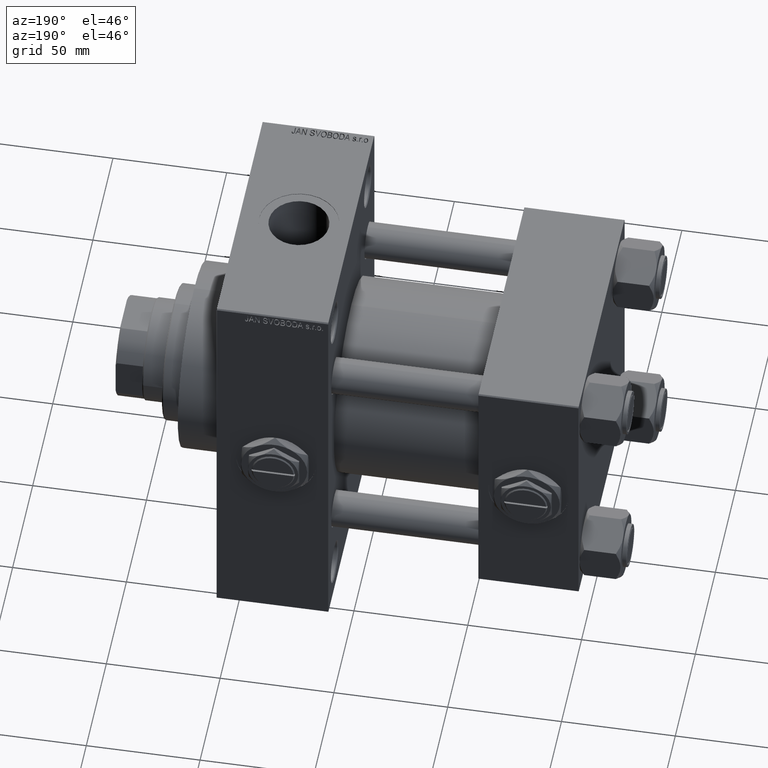
[diagram: clean part render]
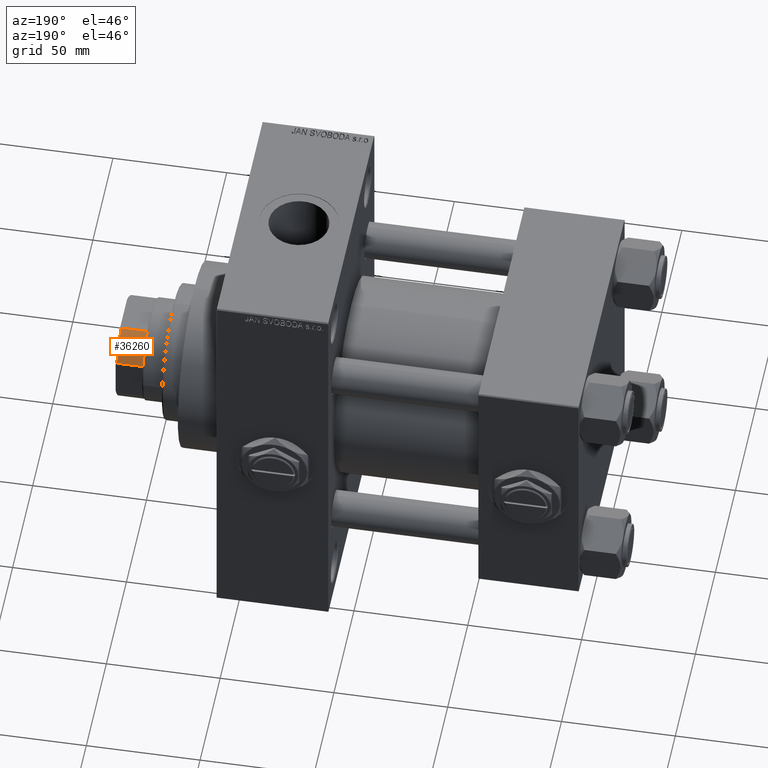
[diagram: same view with one face highlighted and labeled with its STEP entity id]
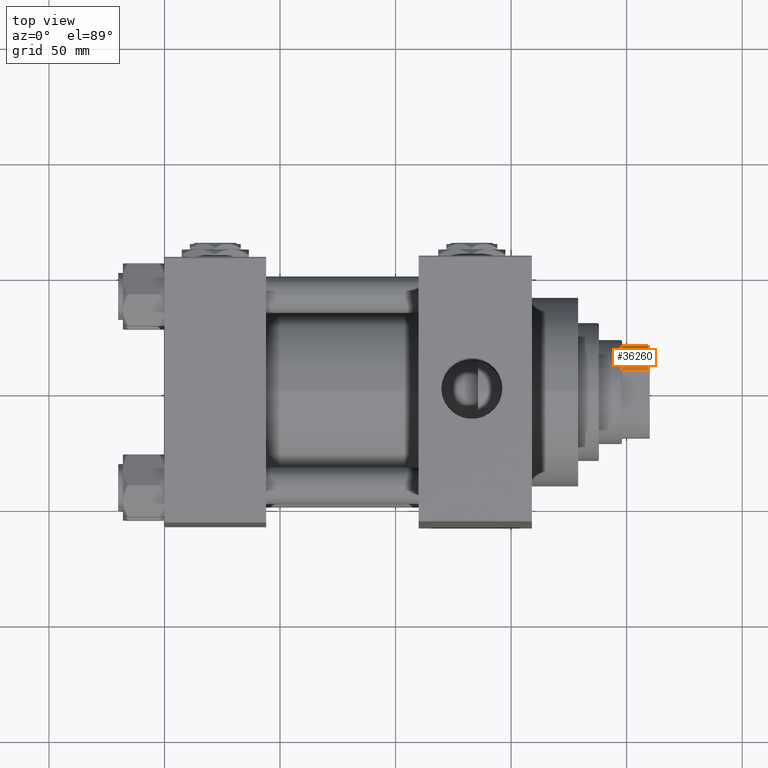
[diagram: same view with one face highlighted and labeled with its STEP entity id]
A machine part, auxiliary view. The second image highlights one B-rep face of the part: STEP entity #36260.
A second angle (top view) of the same face is appended — the face is thin or edge-on in the first view.
In plain terms, the highlighted cylindrical surface (partial cylindrical patch) has radius 22 mm, axis along (1, 0, 0).
Its self-contained STEP definition (entity closure, byte-faithful):
#831 = AXIS2_PLACEMENT_3D ( 'NONE', #25399, #33440, #44287 ) ;
#1311 = EDGE_CURVE ( 'NONE', #32904, #30651, #24633, .T. ) ;
#9358 = AXIS2_PLACEMENT_3D ( 'NONE', #15409, #29785, #33808 ) ;
#10378 = DIRECTION ( 'NONE',  ( -0.000000000000000000, -0.000000000000000000, 1.000000000000000000 ) ) ;
#10454 = VERTEX_POINT ( 'NONE', #15966 ) ;
#11126 = ORIENTED_EDGE ( 'NONE', *, *, #21457, .T. ) ;
#12790 = FACE_OUTER_BOUND ( 'NONE', #24223, .T. ) ;
#15245 = ORIENTED_EDGE ( 'NONE', *, *, #49611, .F. ) ;
#15409 = CARTESIAN_POINT ( 'NONE',  ( 0.000000000000000000, 0.000000000000000000, 154.0000000000000000 ) ) ;
#15674 = VERTEX_POINT ( 'NONE', #21745 ) ;
#15763 = ORIENTED_EDGE ( 'NONE', *, *, #1311, .T. ) ;
#15966 = CARTESIAN_POINT ( 'NONE',  ( -9.165151389911679658, -19.99999999999999645, 165.5000000000000568 ) ) ;
#19581 = DIRECTION ( 'NONE',  ( 1.000000000000000000, 0.000000000000000000, 0.000000000000000000 ) ) ;
#19843 = ORIENTED_EDGE ( 'NONE', *, *, #27037, .T. ) ;
#21409 = LINE ( 'NONE', #24687, #36531 ) ;
#21457 = EDGE_CURVE ( 'NONE', #30651, #10454, #21459, .T. ) ;
#21459 = LINE ( 'NONE', #44125, #48992 ) ;
#21745 = CARTESIAN_POINT ( 'NONE',  ( -20.00000000000000711, -9.165151389911658342, 165.5000000000000568 ) ) ;
#22853 = AXIS2_PLACEMENT_3D ( 'NONE', #23871, #31158, #19581 ) ;
#23871 = CARTESIAN_POINT ( 'NONE',  ( 0.000000000000000000, 0.000000000000000000, -0.001000000000001000089 ) ) ;
#24223 = EDGE_LOOP ( 'NONE', ( #11126, #19843, #15245, #15763 ) ) ;
#24633 = CIRCLE ( 'NONE', #9358, 22.00000000000002132 ) ;
#24687 = CARTESIAN_POINT ( 'NONE',  ( -20.00000000000000711, -9.165151389911658342, -0.001000000000001000089 ) ) ;
#25029 = CARTESIAN_POINT ( 'NONE',  ( -20.00000000000000711, -9.165151389911658342, 154.0000000000000284 ) ) ;
#25181 = DIRECTION ( 'NONE',  ( -0.000000000000000000, -0.000000000000000000, 1.000000000000000000 ) ) ;
#25399 = CARTESIAN_POINT ( 'NONE',  ( 0.000000000000000000, 0.000000000000000000, 165.5000000000000568 ) ) ;
#27037 = EDGE_CURVE ( 'NONE', #10454, #15674, #28189, .T. ) ;
#28189 = CIRCLE ( 'NONE', #831, 22.00000000000000000 ) ;
#29785 = DIRECTION ( 'NONE',  ( 0.000000000000000000, 0.000000000000000000, 1.000000000000000000 ) ) ;
#30651 = VERTEX_POINT ( 'NONE', #39121 ) ;
#31158 = DIRECTION ( 'NONE',  ( -0.000000000000000000, -0.000000000000000000, 1.000000000000000000 ) ) ;
#32904 = VERTEX_POINT ( 'NONE', #25029 ) ;
#33440 = DIRECTION ( 'NONE',  ( -0.000000000000000000, -0.000000000000000000, -1.000000000000000000 ) ) ;
#33808 = DIRECTION ( 'NONE',  ( 1.000000000000000000, 0.000000000000000000, 0.000000000000000000 ) ) ;
#35439 = CYLINDRICAL_SURFACE ( 'NONE', #22853, 22.00000000000000000 ) ;
#36260 = ADVANCED_FACE ( 'NONE', ( #12790 ), #35439, .T. ) ;
#36531 = VECTOR ( 'NONE', #25181, 1000.000000000000000 ) ;
#39121 = CARTESIAN_POINT ( 'NONE',  ( -9.165151389911679658, -19.99999999999999645, 154.0000000000000284 ) ) ;
#44125 = CARTESIAN_POINT ( 'NONE',  ( -9.165151389911679658, -19.99999999999999645, -0.001000000000001000089 ) ) ;
#44287 = DIRECTION ( 'NONE',  ( 1.000000000000000000, -1.776356839400250465E-15, 0.000000000000000000 ) ) ;
#48992 = VECTOR ( 'NONE', #10378, 1000.000000000000000 ) ;
#49611 = EDGE_CURVE ( 'NONE', #32904, #15674, #21409, .T. ) ;